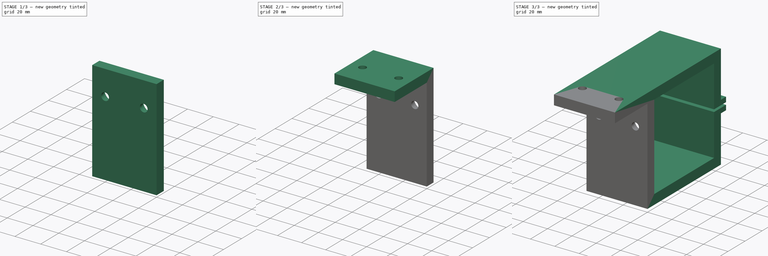
[diagram: build sequence overview — one tinted view per stage of 3, left to right]
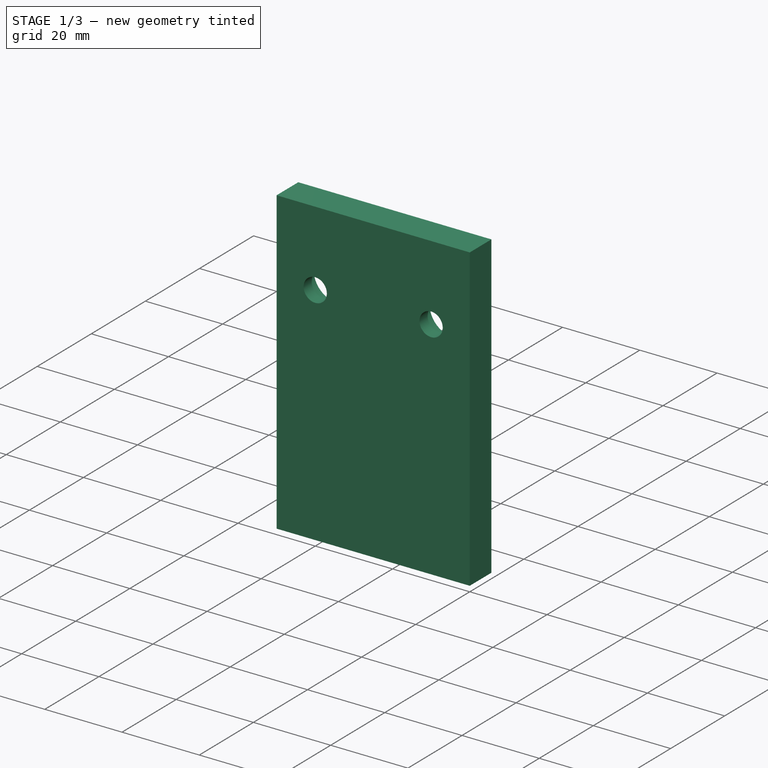
[diagram: stage 1 of 3 — iso view after this stage's code; geometry added in this stage tinted green]
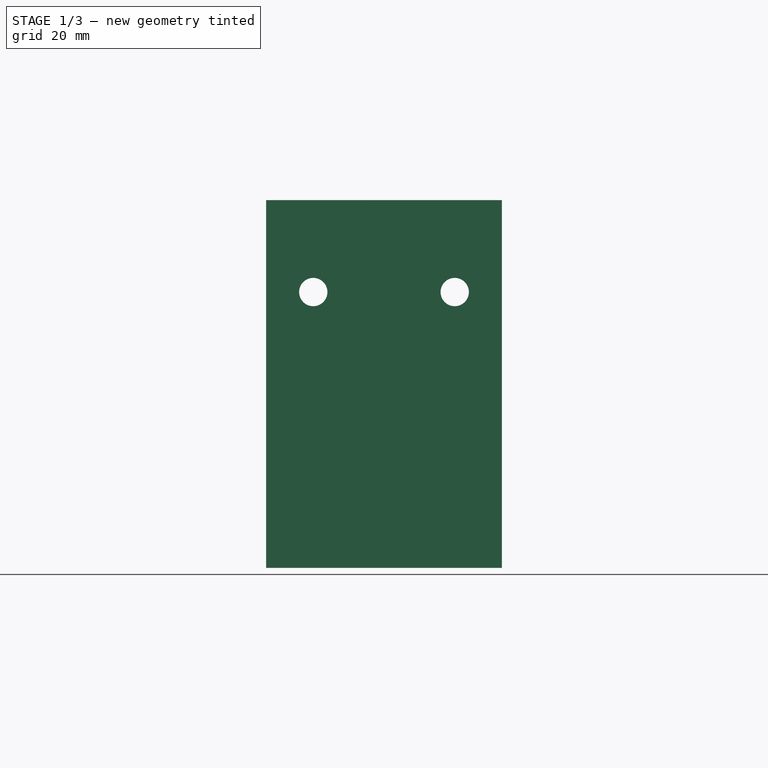
[diagram: stage 1 of 3 — front view after this stage's code; geometry added in this stage tinted green]
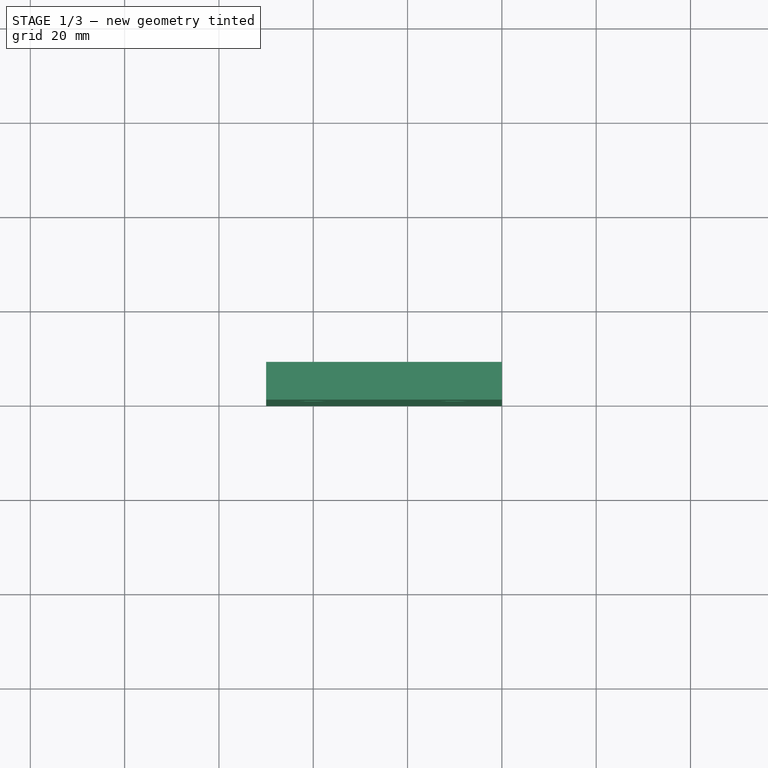
[diagram: stage 1 of 3 — top view after this stage's code; geometry added in this stage tinted green]
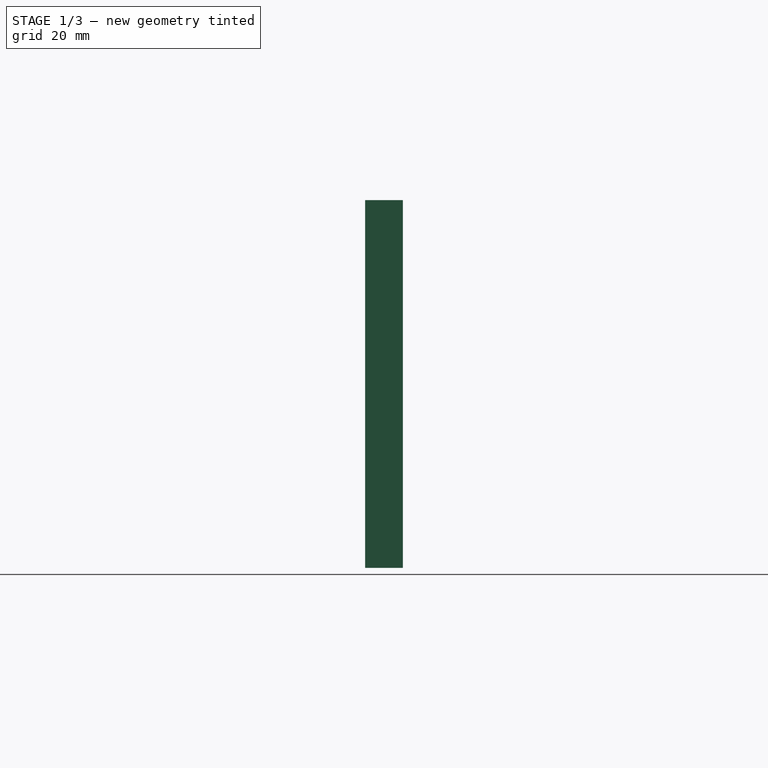
[diagram: stage 1 of 3 — right view after this stage's code; geometry added in this stage tinted green]
FCSTD DOCUMENT  (FreeCAD 1.0R39109 (Git))
Label: suppmount
License: All rights reserved
LicenseURL: https://en.wikipedia.org/wiki/All_rights_reserved
objects: Sketcher::SketchObject×4, PartDesign::Pad×4, PartDesign::Hole×1, PartDesign::Body×1, App::Part×1
note: 24 computed .brp shape members not serialized (recipe doc carries the construction recipe); baked Part::Feature solids carry a one-line shape summary decoded from their .brp

FEATURE [Sketcher::SketchObject] Sketch
  ArcFitTolerance = 1e-06
  AttachmentSupport = -> [XY_Plane001]
  FullyConstrained = false
  MakeInternals = false
  MapMode = 5
  sketch-geometry (16):
    g0: LineSegment StartX=0 StartY=0 StartZ=0 EndX=-50 EndY=0 EndZ=0
    g1: LineSegment StartX=-50 StartY=0 StartZ=0 EndX=-50 EndY=-38.1 EndZ=0
    g2: LineSegment StartX=-50 StartY=-38.1 StartZ=0 EndX=0 EndY=-38.1 EndZ=0
    g3: LineSegment StartX=0 StartY=-38.1 StartZ=0 EndX=0 EndY=0 EndZ=0
    g4: LineSegment StartX=0 StartY=-19.05 StartZ=0 EndX=-50 EndY=-19.05 EndZ=0
    g5: LineSegment StartX=-50 StartY=0 StartZ=0 EndX=-40 EndY=0 EndZ=0
    g6: LineSegment StartX=-40 StartY=0 StartZ=0 EndX=-40 EndY=-38.1 EndZ=0
    g7: Circle CenterX=-40 CenterY=-19.05 CenterZ=0 NormalX=0 NormalY=0 NormalZ=1 AngleXU=0 Radius=3
    g8: LineSegment StartX=0 StartY=0 StartZ=0 EndX=-10 EndY=0 EndZ=0
    g9: LineSegment StartX=-10 StartY=0 StartZ=0 EndX=-10 EndY=-38.1 EndZ=0
    g10: Circle CenterX=-10 CenterY=-19.05 CenterZ=0 NormalX=0 NormalY=0 NormalZ=1 AngleXU=0 Radius=3
    g11: LineSegment StartX=-50 StartY=0 StartZ=0 EndX=0 EndY=0 EndZ=0
    g12: LineSegment StartX=-50 StartY=0 StartZ=0 EndX=0 EndY=0 EndZ=0
    g13: LineSegment StartX=0 StartY=0 StartZ=0 EndX=0 EndY=8 EndZ=0
    g14: LineSegment StartX=0 StartY=8 StartZ=0 EndX=-50 EndY=8 EndZ=0
    g15: LineSegment StartX=-50 StartY=8 StartZ=0 EndX=-50 EndY=0 EndZ=0
  constraints (36):
    c: Coincident(g1,g2)
    c: Coincident(g2,g3)
    c: Horizontal(g0)
    c: Horizontal(g2)
    c: Vertical(g1)
    c: Vertical(g3)
    c: Distance(g1,g3) = 50
    c: Distance(g0,g2) = 38.1
    c: Symmetric(g1,g1,g4)
    c: Distance(g5) = 10
    c: PointOnObject(g5,g0)
    c: Vertical(g6)
    c: Coincident(g6,g5)
    c: PointOnObject(g6,g2)
    c: Diameter(g7) = 6
    c: Symmetric(g6,g6,g7)
    c: Distance(g8) = 10
    c: PointOnObject(g8,g0)
    c: Vertical(g9)
    c: Coincident(g9,g8)
    c: PointOnObject(g9,g2)
    c: Diameter(g10) = 6
    c: Symmetric(g9,g9,g10)
    c: Horizontal(g11)
    c: Coincident(g12,g13)
    c: Coincident(g13,g14)
    c: Coincident(g14,g15)
    c: Coincident(g15,g12)
    c: Horizontal(g12)
    c: Horizontal(g14)
    c: Vertical(g13)
    c: Vertical(g15)
    c: Distance(g13,g15) = 50
    c: Distance(g12,g14) = 8
    c: Coincident(g12,g0)
    c: PointOnObject(g13,g-2)
FEATURE [Sketcher::SketchObject] Sketch001
  ArcFitTolerance = 1e-06
  AttachmentSupport = -> [XZ_Plane001]
  FullyConstrained = true
  MakeInternals = false
  MapMode = 5
  Placement = pos=(0,0,0) rot=(1,0,0;1.5708rad)
  sketch-geometry (12):
    g0: LineSegment StartX=0 StartY=0 StartZ=0 EndX=-50 EndY=0 EndZ=0
    g1: LineSegment StartX=-50 StartY=0 StartZ=0 EndX=-50 EndY=-78 EndZ=0
    g2: LineSegment StartX=-50 StartY=-78 StartZ=0 EndX=0 EndY=-78 EndZ=0
    g3: LineSegment StartX=0 StartY=-78 StartZ=0 EndX=0 EndY=0 EndZ=0
    g4: LineSegment StartX=-50 StartY=0 StartZ=0 EndX=-50 EndY=-19.5 EndZ=0
    g5: LineSegment StartX=-50 StartY=-19.5 StartZ=0 EndX=0 EndY=-19.5 EndZ=0
    g6: LineSegment StartX=-50 StartY=-19.5 StartZ=0 EndX=-40 EndY=-19.5 EndZ=0
    g7: LineSegment StartX=0 StartY=-19.5 StartZ=0 EndX=-10 EndY=-19.5 EndZ=0
    g8: Circle CenterX=-40 CenterY=-19.5 CenterZ=0 NormalX=0 NormalY=0 NormalZ=1 AngleXU=0 Radius=3
    g9: Circle CenterX=-10 CenterY=-19.5 CenterZ=0 NormalX=0 NormalY=0 NormalZ=1 AngleXU=0 Radius=3
    g10: Circle CenterX=-40 CenterY=-19.5 CenterZ=0 NormalX=0 NormalY=0 NormalZ=1 AngleXU=0 Radius=6
    g11: Circle CenterX=-10 CenterY=-19.5 CenterZ=0 NormalX=0 NormalY=0 NormalZ=1 AngleXU=0 Radius=6
  constraints (31):
    c: Coincident(g0,g1)
    c: Coincident(g1,g2)
    c: Coincident(g2,g3)
    c: Coincident(g3,g0)
    c: Horizontal(g0)
    c: Horizontal(g2)
    c: Vertical(g1)
    c: Vertical(g3)
    c: Distance(g1,g3) = 50
    c: Distance(g0,g2) = 78
    c: Coincident(g0,g-1)
    c: Distance(g4) = 19.5
    c: Coincident(g4,g0)
    c: PointOnObject(g4,g1)
    c: Coincident(g5,g4)
    c: PointOnObject(g5,g3)
    c: Horizontal(g5)
    c: Distance(g6) = 10
    c: Coincident(g6,g4)
    c: PointOnObject(g6,g5)
    c: Distance(g7) = 10
    c: Coincident(g7,g5)
    c: PointOnObject(g7,g5)
    c: Diameter(g8) = 6
    c: Coincident(g8,g6)
    c: Diameter(g9) = 6
    c: Coincident(g9,g7)
    c: Diameter(g10) = 12
    c: Coincident(g10,g6)
    c: Diameter(g11) = 12
    c: Coincident(g11,g7)
FEATURE [PartDesign::Pad] Pad001
  Direction = (0,-1,2e-16)
  Length = 8
  Length2 = 10
  Placement = pos=(0,0,0) rot=(1,0,0;1.5708rad)
  Profile = -> Sketch001 [Edge1,Edge6,Edge7,Edge8,Edge12,Edge11]
  ReferenceAxis = -> Sketch001 [N_Axis]
  Refine = true
  Reversed = true
  Suppressed = false
  Type = 0
FEATURE [PartDesign::Pad] Pad002
  BaseFeature = -> Pad001
  Direction = (0,-1,2e-16)
  Length = 3
  Length2 = 10
  Placement = pos=(0,0,0) rot=(1,0,0;1.5708rad)
  Profile = -> Sketch001 [Edge12,Edge10,Edge11,Edge9]
  ReferenceAxis = -> Sketch001 [N_Axis]
  Refine = true
  Reversed = true
  Suppressed = false
  Type = 0
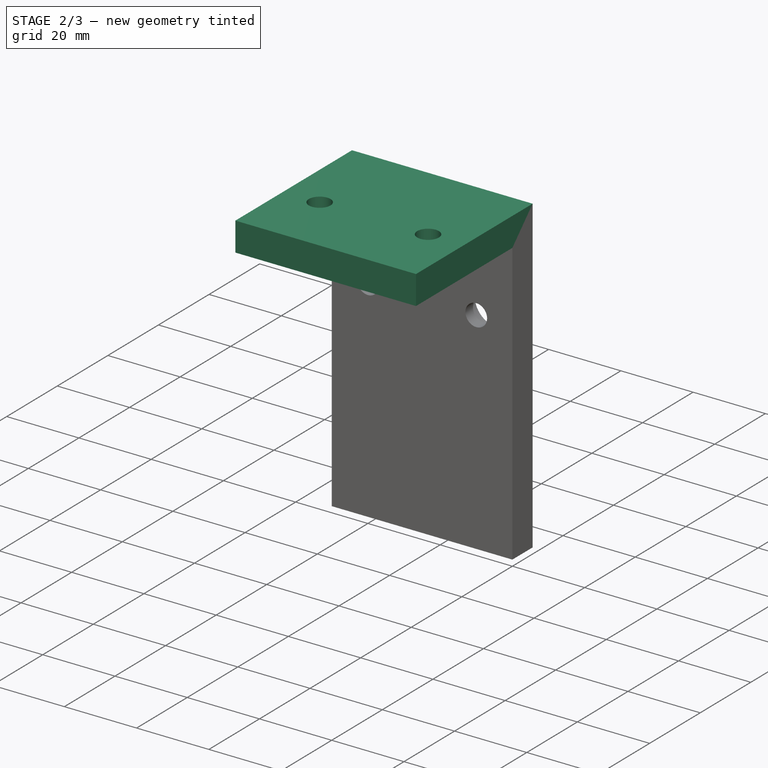
[diagram: stage 2 of 3 — iso view after this stage's code; geometry added in this stage tinted green]
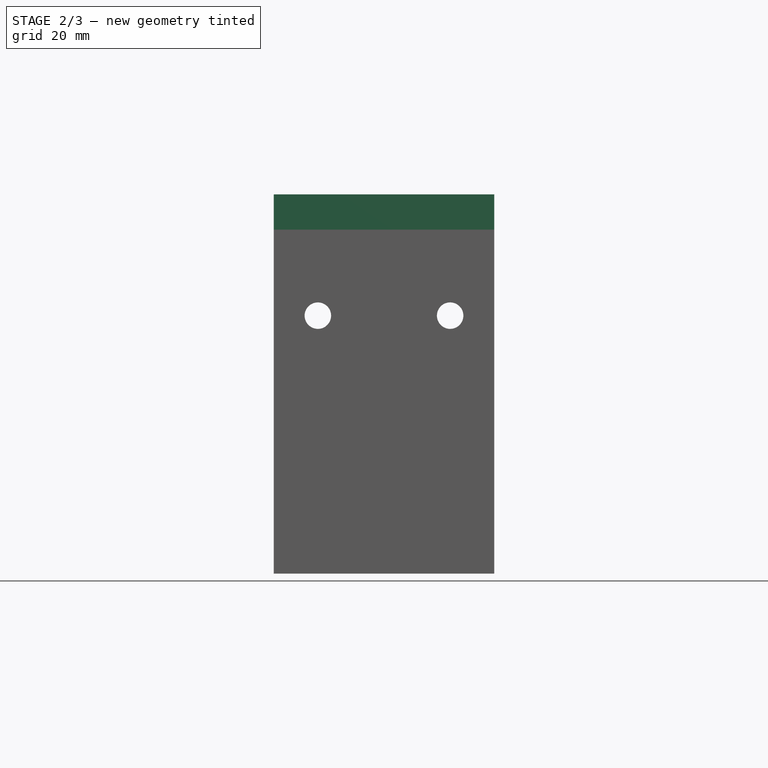
[diagram: stage 2 of 3 — front view after this stage's code; geometry added in this stage tinted green]
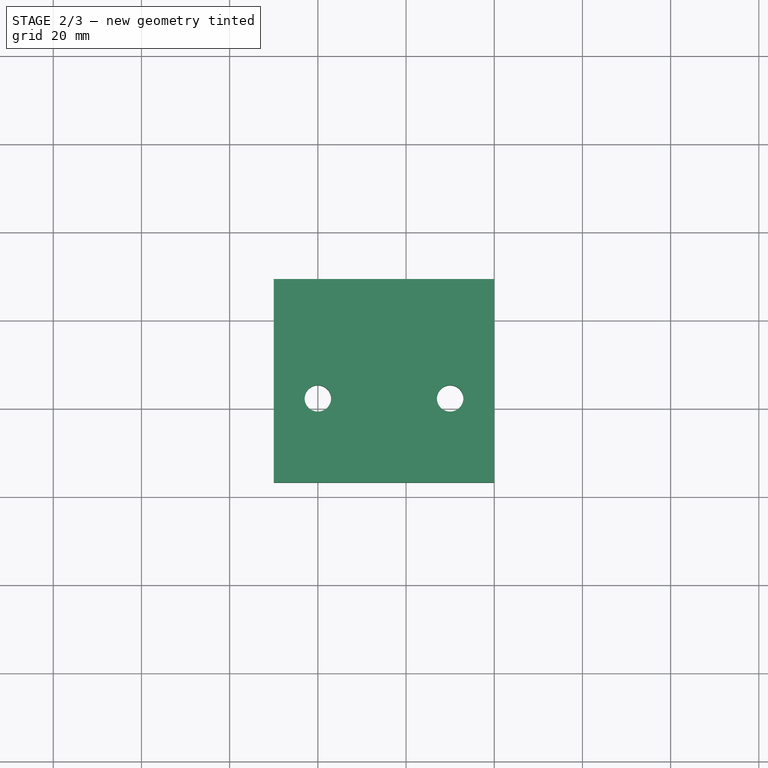
[diagram: stage 2 of 3 — top view after this stage's code; geometry added in this stage tinted green]
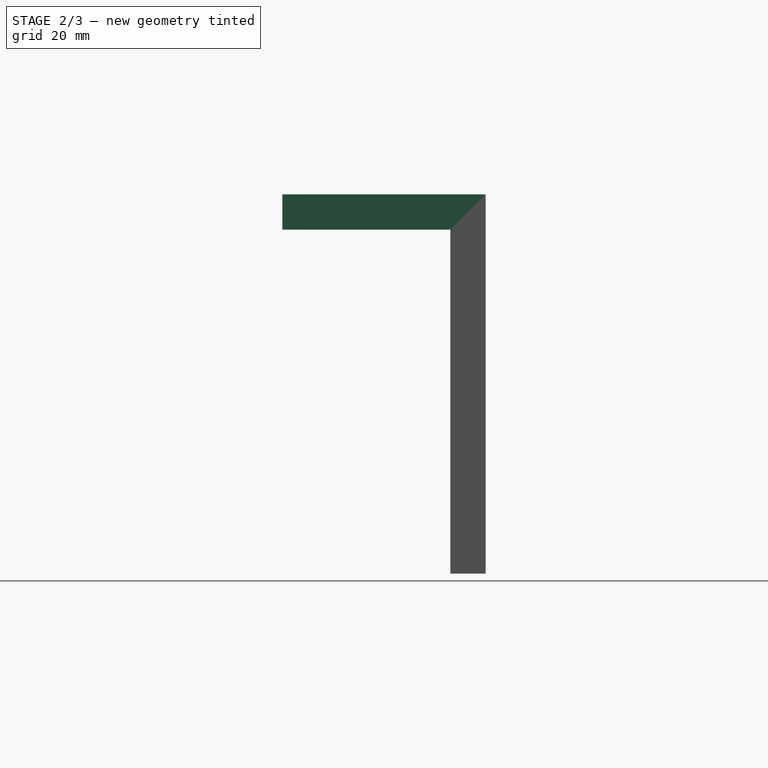
[diagram: stage 2 of 3 — right view after this stage's code; geometry added in this stage tinted green]
FEATURE [Sketcher::SketchObject] Sketch002
  ArcFitTolerance = 1e-06
  AttachmentSupport = -> [YZ_Plane001]
  FullyConstrained = false
  MakeInternals = false
  MapMode = 5
  Placement = pos=(0,0,0) rot=(0.57735,0.57735,0.57735;2.0944rad)
  sketch-geometry (21):
    g0: LineSegment StartX=0 StartY=0 StartZ=0 EndX=0 EndY=8 EndZ=0
    g1: LineSegment StartX=0 StartY=8 StartZ=0 EndX=8 EndY=8 EndZ=0
    g2: LineSegment StartX=8 StartY=8 StartZ=0 EndX=8 EndY=0 EndZ=0
    g3: LineSegment StartX=8 StartY=0 StartZ=0 EndX=8 EndY=-70 EndZ=0
    g4: LineSegment StartX=8 StartY=-70 StartZ=0 EndX=78 EndY=-70 EndZ=0
    g5: LineSegment StartX=78 StartY=0 StartZ=0 EndX=8 EndY=0 EndZ=0
    g6: LineSegment StartX=8 StartY=-70 StartZ=0 EndX=8 EndY=-78 EndZ=0
    g7: LineSegment StartX=8 StartY=8 StartZ=0 EndX=86 EndY=8 EndZ=0
    g8: LineSegment StartX=8 StartY=-78 StartZ=0 EndX=86 EndY=-78 EndZ=0
    g9: LineSegment StartX=78 StartY=-70 StartZ=0 EndX=78 EndY=-36 EndZ=0
    g10: LineSegment StartX=78 StartY=0 StartZ=0 EndX=78 EndY=-34 EndZ=0
    g11: LineSegment StartX=86 StartY=8 StartZ=0 EndX=86 EndY=-30 EndZ=0
    g12: LineSegment StartX=86 StartY=-78 StartZ=0 EndX=86 EndY=-40 EndZ=0
    g13: LineSegment StartX=86 StartY=-40 StartZ=0 EndX=92 EndY=-40 EndZ=0
    g14: LineSegment StartX=92 StartY=-40 StartZ=0 EndX=92 EndY=-36 EndZ=0
    g15: LineSegment StartX=92 StartY=-36 StartZ=0 EndX=86 EndY=-36 EndZ=0
    g16: LineSegment StartX=86 StartY=-34 StartZ=0 EndX=92 EndY=-34 EndZ=0
    g17: LineSegment StartX=92 StartY=-34 StartZ=0 EndX=92 EndY=-30 EndZ=0
    g18: LineSegment StartX=92 StartY=-30 StartZ=0 EndX=86 EndY=-30 EndZ=0
    g19: LineSegment StartX=78 StartY=-36 StartZ=0 EndX=86 EndY=-36 EndZ=0
    g20: LineSegment StartX=78 StartY=-34 StartZ=0 EndX=86 EndY=-34 EndZ=0
  constraints (54):
    c: Distance(g0) = 8
    c: Coincident(g0,g-1)
    c: PointOnObject(g0,g-2)
    c: Distance(g1) = 8
    c: Coincident(g1,g0)
    c: Horizontal(g1)
    c: Distance(g2) = 8
    c: Coincident(g2,g1)
    c: Vertical(g2)
    c: Coincident(g3,g4)
    c: Coincident(g5,g3)
    c: Vertical(g3)
    c: Horizontal(g4)
    c: Horizontal(g5)
    c: Distance(g3,g5) = 70
    c: Distance(g4,g5) = 70
    c: Coincident(g3,g2)
    c: Distance(g6) = 8
    c: Coincident(g6,g3)
    c: Vertical(g6)
    c: Distance(g7) = 78
    c: Coincident(g7,g1)
    c: Horizontal(g7)
    c: Distance(g8) = 78
    c: Coincident(g8,g6)
    c: Horizontal(g8)
    c: Distance(g9) = 34
    c: Vertical(g9)
    c: Coincident(g9,g4)
    c: Distance(g10) = 34
    c: Coincident(g10,g5)
    c: Vertical(g10)
    c: Coincident(g11,g7)
    c: Vertical(g11)
    c: Coincident(g12,g8)
    c: Vertical(g12)
    c: Coincident(g13,g14)
    c: Coincident(g14,g15)
    c: Vertical(g14)
    c: Horizontal(g13)
    c: Horizontal(g15)
    c: Distance(g15,g14) = 6
    c: Distance(g13,g15) = 4
    c: Coincident(g16,g17)
    c: Coincident(g17,g18)
    c: Horizontal(g16)
    c: Horizontal(g18)
    c: Vertical(g17)
    c: Distance(g17,g16) = 6
    c: Distance(g16,g18) = 4
    c: Coincident(g19,g9)
    c: Coincident(g20,g10)
    c: Coincident(g20,g16)
    c: PointOnObject(g11,g18)
FEATURE [PartDesign::Pad] Pad
  BaseFeature = -> Pad002
  Direction = (0,0,1)
  Length = 8
  Length2 = 10
  Placement = pos=(0,0,0) rot=(1,0,0;1.5708rad)
  Profile = -> Sketch [Edge4,Edge11,Edge10,Edge9,Edge6,Edge5,Edge15,Edge16]
  ReferenceAxis = -> Sketch [N_Axis]
  Refine = true
  Suppressed = false
  Type = 0
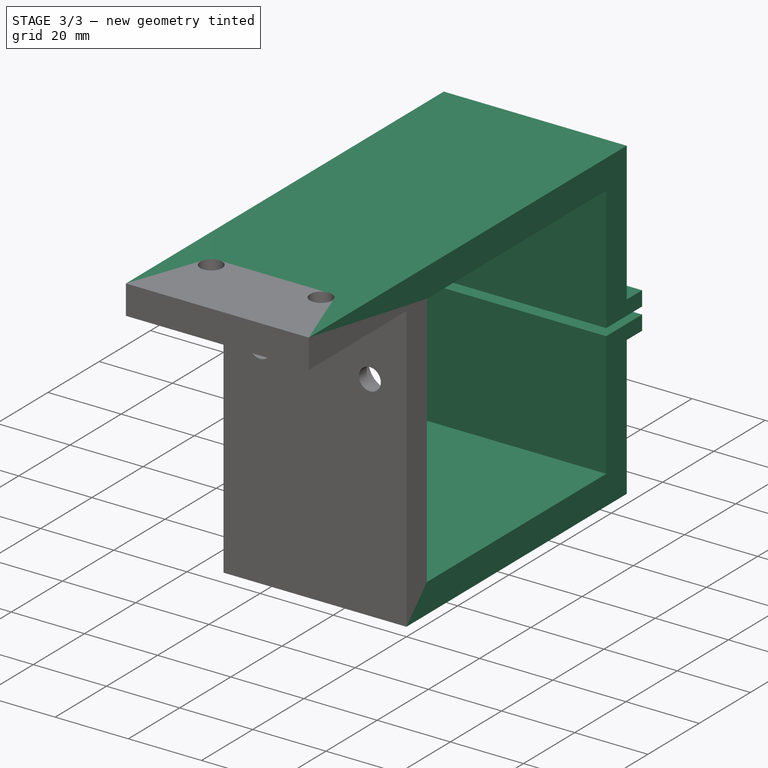
[diagram: stage 3 of 3 — iso view after this stage's code; geometry added in this stage tinted green]
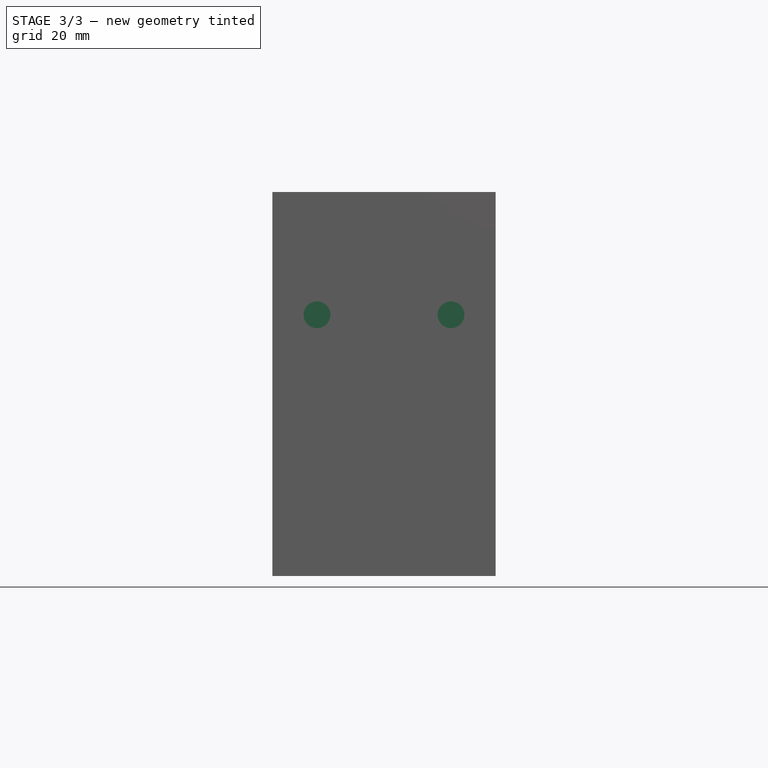
[diagram: stage 3 of 3 — front view after this stage's code; geometry added in this stage tinted green]
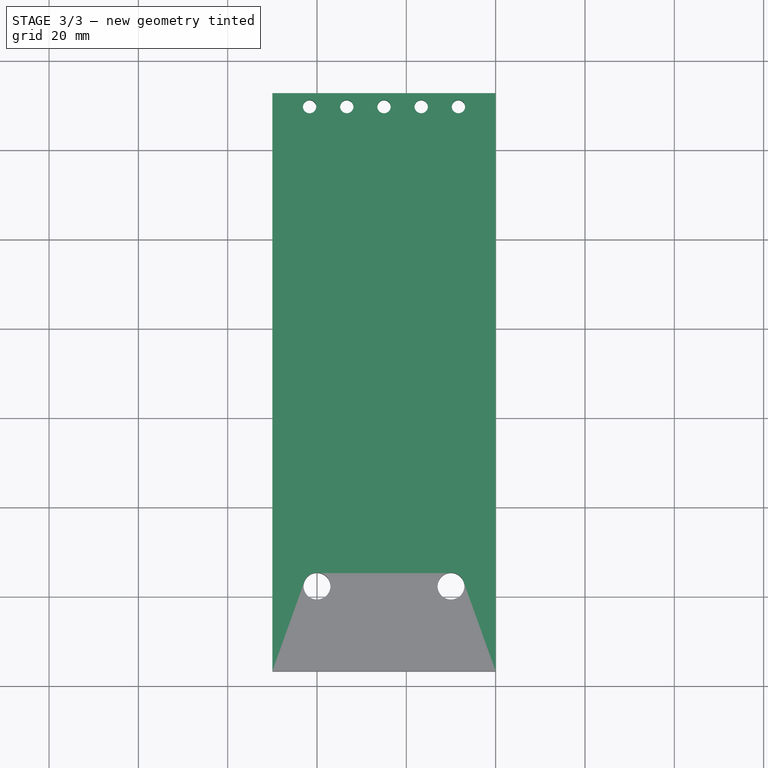
[diagram: stage 3 of 3 — top view after this stage's code; geometry added in this stage tinted green]
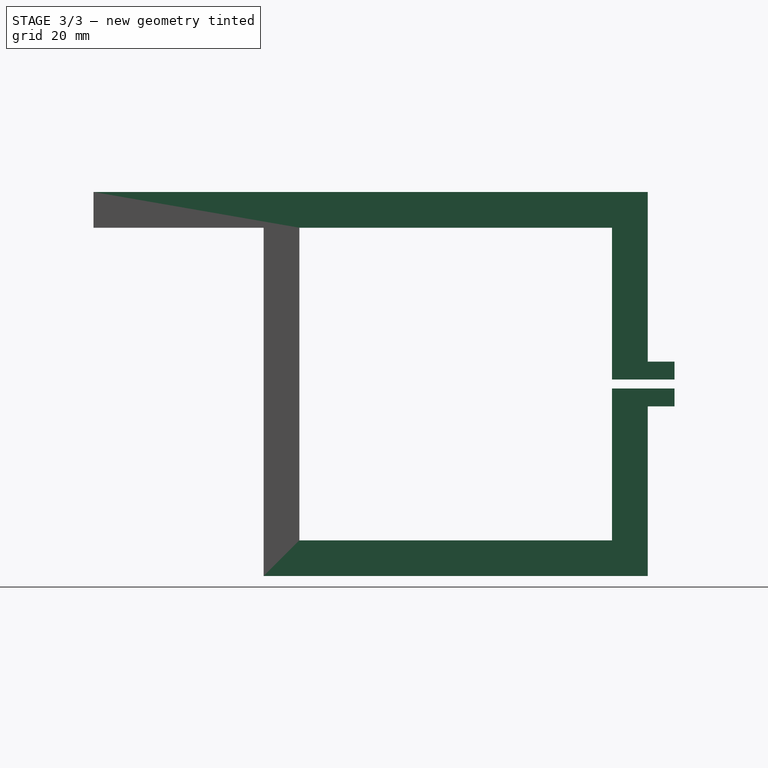
[diagram: stage 3 of 3 — right view after this stage's code; geometry added in this stage tinted green]
FEATURE [PartDesign::Pad] Pad003
  BaseFeature = -> Pad
  Direction = (1,0,0)
  Length = 50
  Length2 = 10
  Placement = pos=(0,0,0) rot=(1,0,0;1.5708rad)
  Profile = -> Sketch002 [Edge8,Edge11,Edge1,Edge21,Edge20,Edge13,Edge14,Edge19,Edge2,Edge7,Edge3,Edge4,Edge5,Edge6,Edge15,Edge16,Edge17,Edge18]
  ReferenceAxis = -> Sketch002 [N_Axis]
  Refine = true
  Reversed = true
  Suppressed = false
  Type = 0
FEATURE [Sketcher::SketchObject] Sketch003
  ArcFitTolerance = 1e-06
  AttachmentOffset = pos=(50,-178,0) rot=(0,0,1;0rad)
  AttachmentSupport = -> [Pad003]
  FullyConstrained = false
  MakeInternals = false
  MapMode = 5
  Placement = pos=(-50,178,-30) rot=(0,0,1;3.14159rad)
  sketch-geometry (10):
    g0: LineSegment StartX=0 StartY=85.9962 StartZ=0 EndX=0 EndY=91.9962 EndZ=0
    g1: LineSegment StartX=0 StartY=91.9962 StartZ=0 EndX=-50 EndY=91.9962 EndZ=0
    g2: LineSegment StartX=-50 StartY=91.9962 StartZ=0 EndX=-50 EndY=85.9962 EndZ=0
    g3: LineSegment StartX=-50 StartY=85.9962 StartZ=0 EndX=0 EndY=85.9962 EndZ=0
    g4: LineSegment StartX=-50 StartY=88.9962 StartZ=0 EndX=-41.667 EndY=88.9962 EndZ=0
    g5: Circle CenterX=-41.667 CenterY=88.9962 CenterZ=0 NormalX=0 NormalY=0 NormalZ=1 AngleXU=0 Radius=1.5
    g6: Circle CenterX=-33.334 CenterY=88.9962 CenterZ=0 NormalX=0 NormalY=0 NormalZ=1 AngleXU=0 Radius=1.5
    g7: Circle CenterX=-25.001 CenterY=88.9962 CenterZ=0 NormalX=0 NormalY=0 NormalZ=1 AngleXU=0 Radius=1.5
    g8: Circle CenterX=-16.668 CenterY=88.9962 CenterZ=0 NormalX=0 NormalY=0 NormalZ=1 AngleXU=0 Radius=1.5
    g9: Circle CenterX=-8.335 CenterY=88.9962 CenterZ=0 NormalX=0 NormalY=0 NormalZ=1 AngleXU=0 Radius=1.5
  constraints (20):
    c: Coincident(g0,g1)
    c: Coincident(g1,g2)
    c: Coincident(g2,g3)
    c: Coincident(g3,g0)
    c: Vertical(g0)
    c: Vertical(g2)
    c: Horizontal(g1)
    c: Horizontal(g3)
    c: Distance(g0,g2) = 50
    c: Distance(g1,g3) = 6
    c: PointOnObject(g0,g-2)
    c: Distance(g4) = 8.333
    c: Horizontal(g4)
    c: Symmetric(g2,g2,g4)
    c: Diameter(g5) = 3
    c: Coincident(g5,g4)
    c: Diameter(g6) = 3
    c: Diameter(g7) = 3
    c: Diameter(g8) = 3
    c: Diameter(g9) = 3
FEATURE [PartDesign::Hole] Hole
  BaseFeature = -> Pad003
  CustomThreadClearance = 0
  Depth = 25
  DepthType = 0
  Diameter = 3
  DrillForDepth = false
  DrillPoint = 1
  DrillPointAngle = 118
  HoleCutCountersinkAngle = 90
  HoleCutCustomValues = false
  HoleCutDepth = 0
  HoleCutDiameter = 6.1
  HoleCutType = 0
  ModelThread = false
  Placement = pos=(0,0,0) rot=(1,0,0;1.5708rad)
  Profile = -> Sketch003 [Edge6,Edge7,Edge8,Edge9,Edge10]
  Refine = true
  Suppressed = false
  Tapered = false
  TaperedAngle = 90
  ThreadClass = 0
  ThreadDepth = 25
  ThreadDepthType = 0
  ThreadDirection = 0
  ThreadFit = 0
  ThreadSize = 0
  ThreadType = 0
  Threaded = false
  UseCustomThreadClearance = false
FEATURE [PartDesign::Body] Body
  AllowCompound = false
  Group = -> [Sketch,Sketch001,Pad001,Pad002,Sketch002,Pad,Pad003,Sketch003,Hole]
  Origin = -> Origin001
  Tip = -> Hole
FEATURE [App::Part] Part
  Group = -> [Body]
  Origin = -> Origin
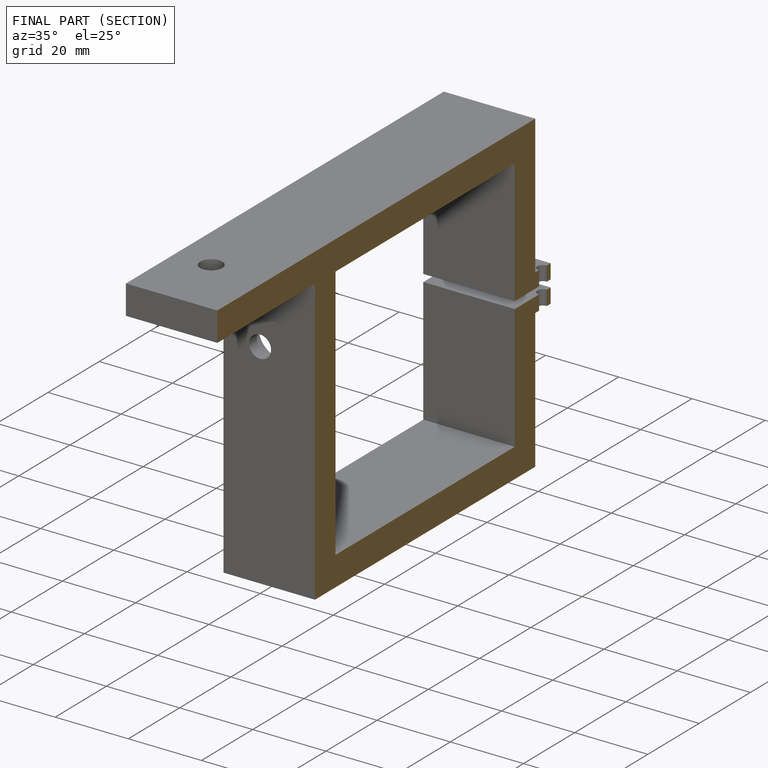
[diagram: finished part — half-section view (interior)]
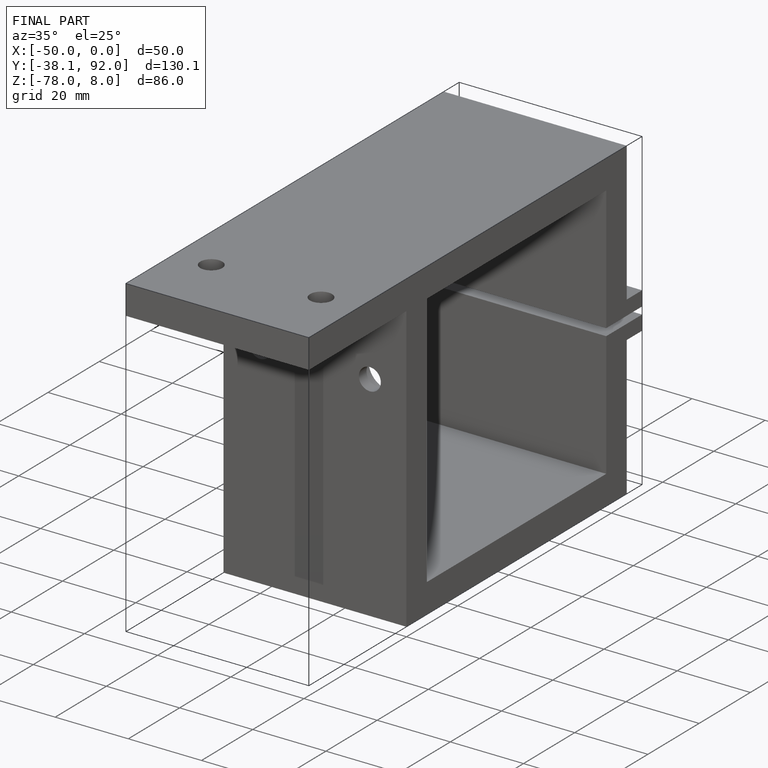
[diagram: finished part — iso view with bounding-box wireframe]
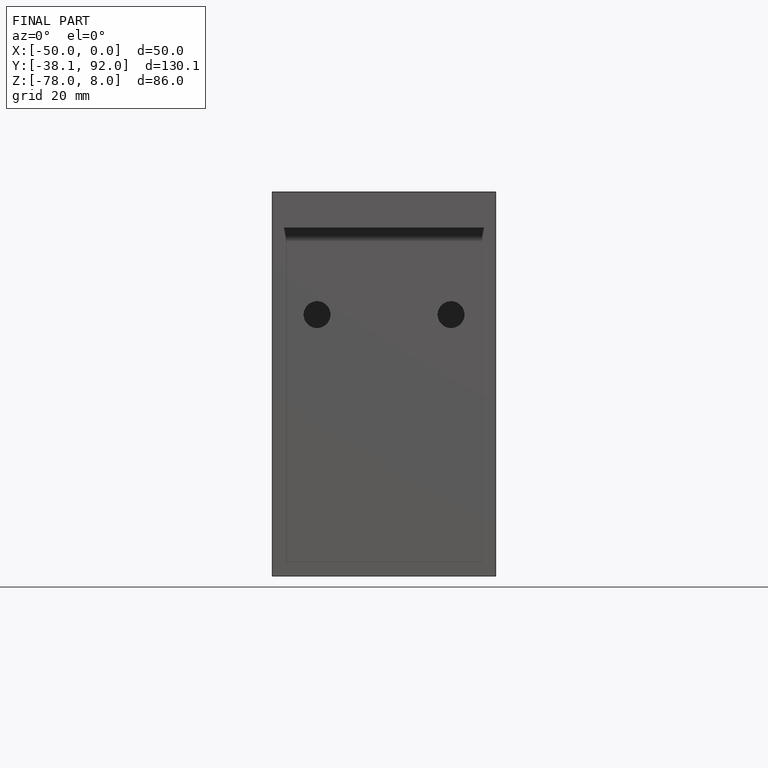
[diagram: finished part — front view with bounding-box wireframe]
